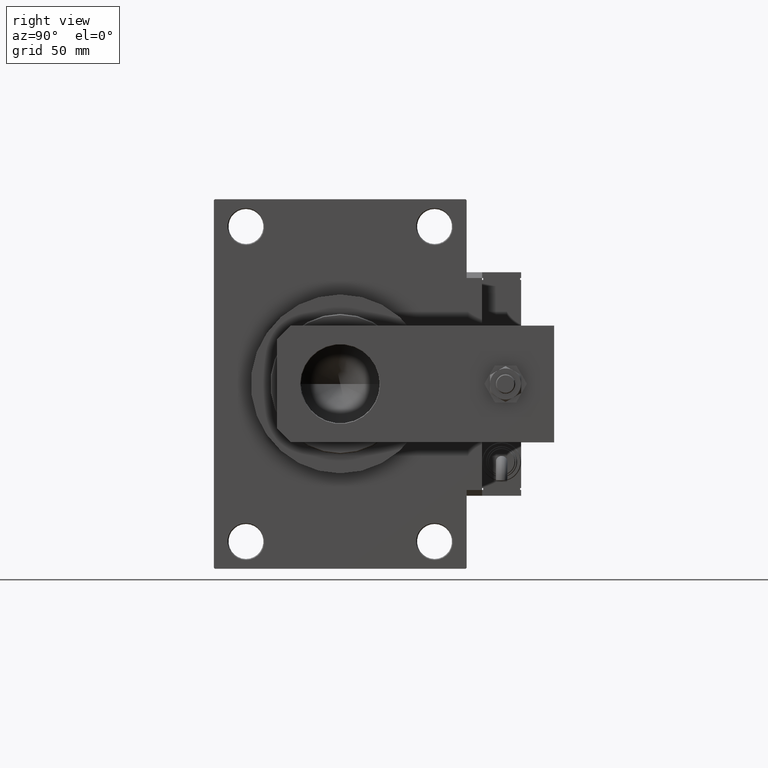
[diagram: clean part render]
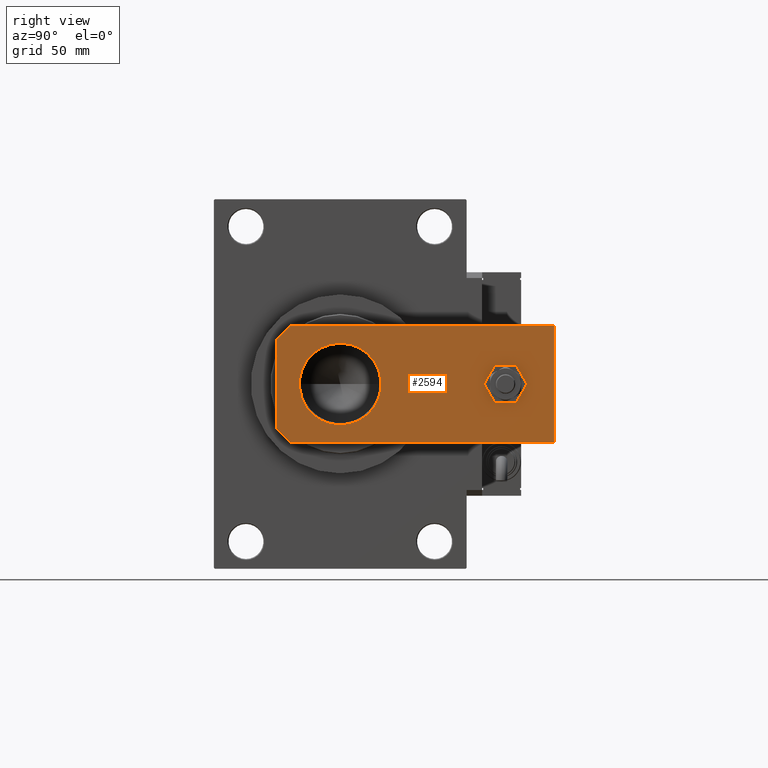
[diagram: same view with one face highlighted and labeled with its STEP entity id]
A machine part, right view. The second image highlights one B-rep face of the part: STEP entity #2594.
In plain terms, the highlighted planar face has unit normal (-1, 0, 0).
Its self-contained STEP definition (entity closure, byte-faithful):
#740 = VERTEX_POINT ( 'NONE', #40282 ) ;
#1225 = LINE ( 'NONE', #26647, #6779 ) ;
#1450 = AXIS2_PLACEMENT_3D ( 'NONE', #44473, #7444, #19610 ) ;
#2136 = DIRECTION ( 'NONE',  ( 1.000000000000000000, 0.000000000000000000, 0.000000000000000000 ) ) ;
#2280 = AXIS2_PLACEMENT_3D ( 'NONE', #35708, #14901, #31402 ) ;
#2594 = ADVANCED_FACE ( 'NONE', ( #27461, #32599, #44217 ), #36104, .F. ) ;
#3255 = CARTESIAN_POINT ( 'NONE',  ( 22.99999999999999289, 0.000000000000000000, 0.000000000000000000 ) ) ;
#3584 = EDGE_LOOP ( 'NONE', ( #14816, #26766, #7310, #46663, #13252, #15186 ) ) ;
#3646 = EDGE_CURVE ( 'NONE', #53204, #740, #9323, .T. ) ;
#4748 = VECTOR ( 'NONE', #17285, 1000.000000000000000 ) ;
#4850 = CARTESIAN_POINT ( 'NONE',  ( 30.00000000000001421, 0.000000000000000000, 0.000000000000000000 ) ) ;
#6176 = VERTEX_POINT ( 'NONE', #13406 ) ;
#6194 = EDGE_CURVE ( 'NONE', #6176, #36831, #1225, .T. ) ;
#6217 = DIRECTION ( 'NONE',  ( 0.000000000000000000, 0.000000000000000000, 1.000000000000000000 ) ) ;
#6779 = VECTOR ( 'NONE', #14209, 1000.000000000000000 ) ;
#7310 = ORIENTED_EDGE ( 'NONE', *, *, #32508, .F. ) ;
#7444 = DIRECTION ( 'NONE',  ( -0.000000000000000000, 0.000000000000000000, 1.000000000000000000 ) ) ;
#7741 = CARTESIAN_POINT ( 'NONE',  ( -6.336982936358498885E-16, 117.5000000000000000, 0.000000000000000000 ) ) ;
#8973 = EDGE_LOOP ( 'NONE', ( #38929, #27376 ) ) ;
#9323 = LINE ( 'NONE', #42293, #11000 ) ;
#9424 = LINE ( 'NONE', #14819, #33229 ) ;
#10772 = VECTOR ( 'NONE', #22522, 1000.000000000000000 ) ;
#10989 = DIRECTION ( 'NONE',  ( 0.000000000000000000, 0.000000000000000000, 1.000000000000000000 ) ) ;
#11000 = VECTOR ( 'NONE', #17683, 1000.000000000000000 ) ;
#11356 = VECTOR ( 'NONE', #44873, 1000.000000000000000 ) ;
#11374 = CARTESIAN_POINT ( 'NONE',  ( -30.00000000000001421, 0.000000000000000000, 0.000000000000000000 ) ) ;
#11529 = DIRECTION ( 'NONE',  ( 1.000000000000000000, 0.000000000000000000, 0.000000000000000000 ) ) ;
#12485 = CARTESIAN_POINT ( 'NONE',  ( 30.00000000000000355, 142.5000000000000284, 0.000000000000000000 ) ) ;
#12644 = AXIS2_PLACEMENT_3D ( 'NONE', #15042, #10989, #39653 ) ;
#13252 = ORIENTED_EDGE ( 'NONE', *, *, #43552, .F. ) ;
#13406 = CARTESIAN_POINT ( 'NONE',  ( 30.00000000000001421, 6.999999999999992006, 0.000000000000000000 ) ) ;
#13608 = CARTESIAN_POINT ( 'NONE',  ( 7.000000000000003553, 117.5000000000000000, 0.000000000000000000 ) ) ;
#14209 = DIRECTION ( 'NONE',  ( -0.7071067811865489050, -0.7071067811865462405, -0.000000000000000000 ) ) ;
#14816 = ORIENTED_EDGE ( 'NONE', *, *, #25184, .F. ) ;
#14819 = CARTESIAN_POINT ( 'NONE',  ( -30.00000000000000000, 142.5000000000000000, 0.000000000000000000 ) ) ;
#14901 = DIRECTION ( 'NONE',  ( 0.000000000000000000, 0.000000000000000000, 1.000000000000000000 ) ) ;
#15042 = CARTESIAN_POINT ( 'NONE',  ( 0.000000000000000000, 32.49999999999998579, 0.000000000000000000 ) ) ;
#15186 = ORIENTED_EDGE ( 'NONE', *, *, #6194, .T. ) ;
#17285 = DIRECTION ( 'NONE',  ( -7.304098846218134421E-17, 1.000000000000000000, 0.000000000000000000 ) ) ;
#17683 = DIRECTION ( 'NONE',  ( -1.000000000000000000, -4.625929269271485914E-16, 0.000000000000000000 ) ) ;
#18184 = CARTESIAN_POINT ( 'NONE',  ( -7.000000000000005329, 117.5000000000000000, 0.000000000000000000 ) ) ;
#18730 = CARTESIAN_POINT ( 'NONE',  ( -23.00000000000002132, 0.000000000000000000, 0.000000000000000000 ) ) ;
#19591 = CIRCLE ( 'NONE', #46353, 7.000000000000004441 ) ;
#19610 = DIRECTION ( 'NONE',  ( 1.000000000000000000, 0.000000000000000000, 0.000000000000000000 ) ) ;
#20353 = CARTESIAN_POINT ( 'NONE',  ( -21.00000000000000000, 32.49999999999998579, 0.000000000000000000 ) ) ;
#21290 = AXIS2_PLACEMENT_3D ( 'NONE', #26747, #30276, #2136 ) ;
#22522 = DIRECTION ( 'NONE',  ( -0.7071067811865454633, 0.7071067811865495711, -0.000000000000000000 ) ) ;
#23466 = VERTEX_POINT ( 'NONE', #37646 ) ;
#25184 = EDGE_CURVE ( 'NONE', #23466, #36831, #52446, .T. ) ;
#26033 = ORIENTED_EDGE ( 'NONE', *, *, #41067, .T. ) ;
#26254 = CARTESIAN_POINT ( 'NONE',  ( -30.00000000000001421, 7.000000000000033751, 0.000000000000000000 ) ) ;
#26647 = CARTESIAN_POINT ( 'NONE',  ( 30.00000000000001421, 6.999999999999992006, 0.000000000000000000 ) ) ;
#26747 = CARTESIAN_POINT ( 'NONE',  ( -6.336982936358498885E-16, 117.5000000000000000, 0.000000000000000000 ) ) ;
#26766 = ORIENTED_EDGE ( 'NONE', *, *, #31939, .T. ) ;
#27376 = ORIENTED_EDGE ( 'NONE', *, *, #39580, .T. ) ;
#27461 = FACE_OUTER_BOUND ( 'NONE', #3584, .T. ) ;
#29940 = CIRCLE ( 'NONE', #12644, 21.00000000000000000 ) ;
#30276 = DIRECTION ( 'NONE',  ( 0.000000000000000000, 0.000000000000000000, 1.000000000000000000 ) ) ;
#31402 = DIRECTION ( 'NONE',  ( 1.000000000000000000, 0.000000000000000000, 0.000000000000000000 ) ) ;
#31715 = EDGE_LOOP ( 'NONE', ( #40401, #26033 ) ) ;
#31939 = EDGE_CURVE ( 'NONE', #23466, #43282, #39278, .T. ) ;
#32508 = EDGE_CURVE ( 'NONE', #740, #43282, #9424, .T. ) ;
#32599 = FACE_BOUND ( 'NONE', #31715, .T. ) ;
#32994 = VERTEX_POINT ( 'NONE', #13608 ) ;
#33229 = VECTOR ( 'NONE', #46430, 1000.000000000000000 ) ;
#35708 = CARTESIAN_POINT ( 'NONE',  ( 0.000000000000000000, 32.49999999999998579, 0.000000000000000000 ) ) ;
#36104 = PLANE ( 'NONE',  #1450 ) ;
#36831 = VERTEX_POINT ( 'NONE', #3255 ) ;
#37646 = CARTESIAN_POINT ( 'NONE',  ( -23.00000000000002132, 0.000000000000000000, 0.000000000000000000 ) ) ;
#38929 = ORIENTED_EDGE ( 'NONE', *, *, #45727, .T. ) ;
#39083 = VERTEX_POINT ( 'NONE', #20353 ) ;
#39278 = LINE ( 'NONE', #18730, #10772 ) ;
#39580 = EDGE_CURVE ( 'NONE', #41455, #39083, #29940, .T. ) ;
#39632 = EDGE_CURVE ( 'NONE', #41655, #32994, #47165, .T. ) ;
#39653 = DIRECTION ( 'NONE',  ( 1.000000000000000000, 0.000000000000000000, 0.000000000000000000 ) ) ;
#40282 = CARTESIAN_POINT ( 'NONE',  ( -30.00000000000000000, 142.5000000000000000, 0.000000000000000000 ) ) ;
#40401 = ORIENTED_EDGE ( 'NONE', *, *, #39632, .T. ) ;
#41067 = EDGE_CURVE ( 'NONE', #32994, #41655, #19591, .T. ) ;
#41455 = VERTEX_POINT ( 'NONE', #48482 ) ;
#41655 = VERTEX_POINT ( 'NONE', #18184 ) ;
#41887 = LINE ( 'NONE', #4850, #4748 ) ;
#42293 = CARTESIAN_POINT ( 'NONE',  ( 30.00000000000000355, 142.5000000000000284, 0.000000000000000000 ) ) ;
#43282 = VERTEX_POINT ( 'NONE', #26254 ) ;
#43552 = EDGE_CURVE ( 'NONE', #6176, #53204, #41887, .T. ) ;
#44217 = FACE_BOUND ( 'NONE', #8973, .T. ) ;
#44473 = CARTESIAN_POINT ( 'NONE',  ( 0.000000000000000000, 0.000000000000000000, 0.000000000000000000 ) ) ;
#44873 = DIRECTION ( 'NONE',  ( 1.000000000000000000, 0.000000000000000000, 0.000000000000000000 ) ) ;
#45727 = EDGE_CURVE ( 'NONE', #39083, #41455, #47175, .T. ) ;
#46353 = AXIS2_PLACEMENT_3D ( 'NONE', #7741, #6217, #11529 ) ;
#46430 = DIRECTION ( 'NONE',  ( -9.738798461624180871E-17, -1.000000000000000000, 0.000000000000000000 ) ) ;
#46663 = ORIENTED_EDGE ( 'NONE', *, *, #3646, .F. ) ;
#47165 = CIRCLE ( 'NONE', #21290, 7.000000000000004441 ) ;
#47175 = CIRCLE ( 'NONE', #2280, 21.00000000000000000 ) ;
#48482 = CARTESIAN_POINT ( 'NONE',  ( 21.00000000000000000, 32.49999999999998579, 0.000000000000000000 ) ) ;
#52446 = LINE ( 'NONE', #11374, #11356 ) ;
#53204 = VERTEX_POINT ( 'NONE', #12485 ) ;